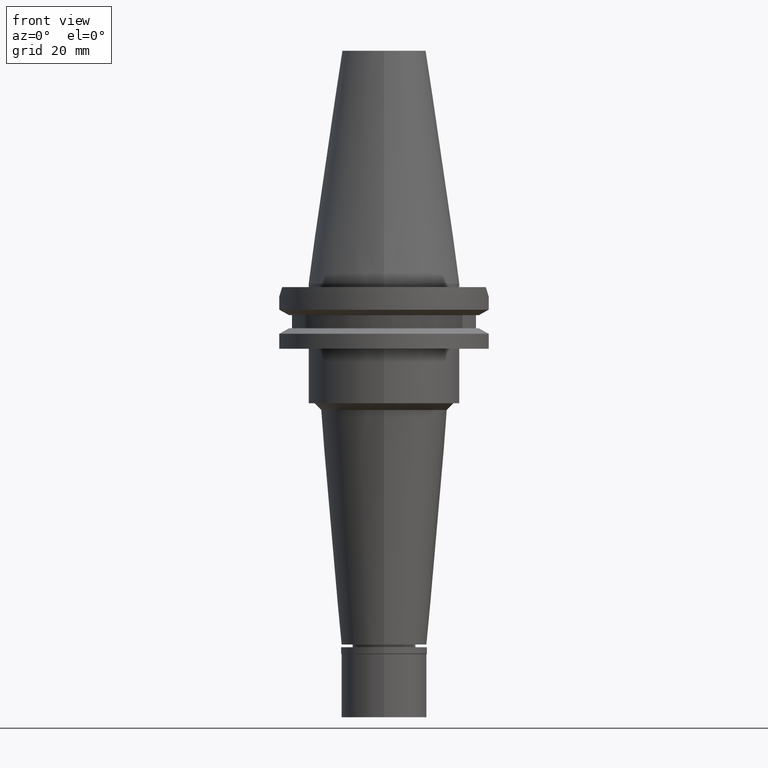
[diagram: clean part render]
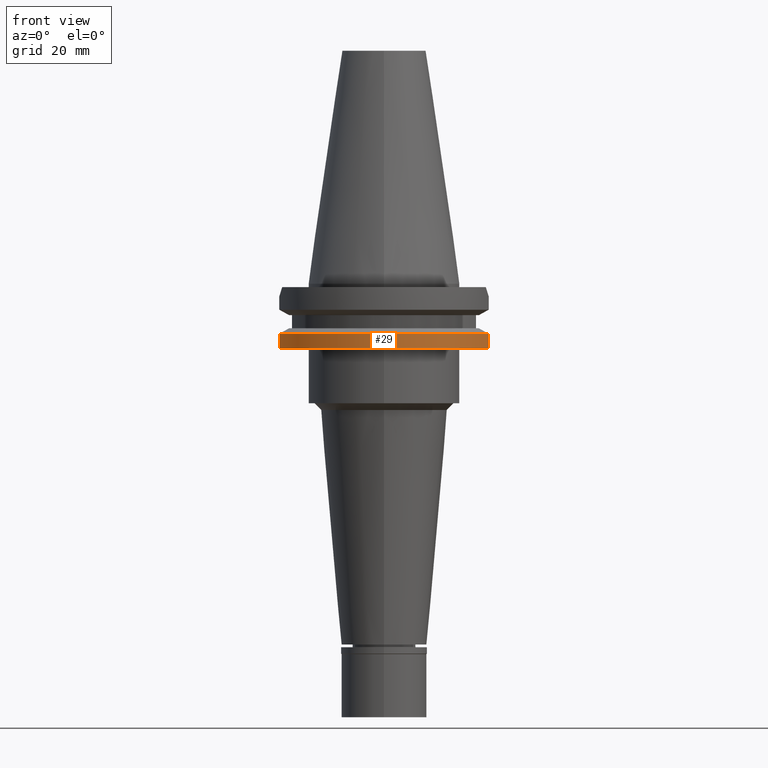
[diagram: same view with one face highlighted and labeled with its STEP entity id]
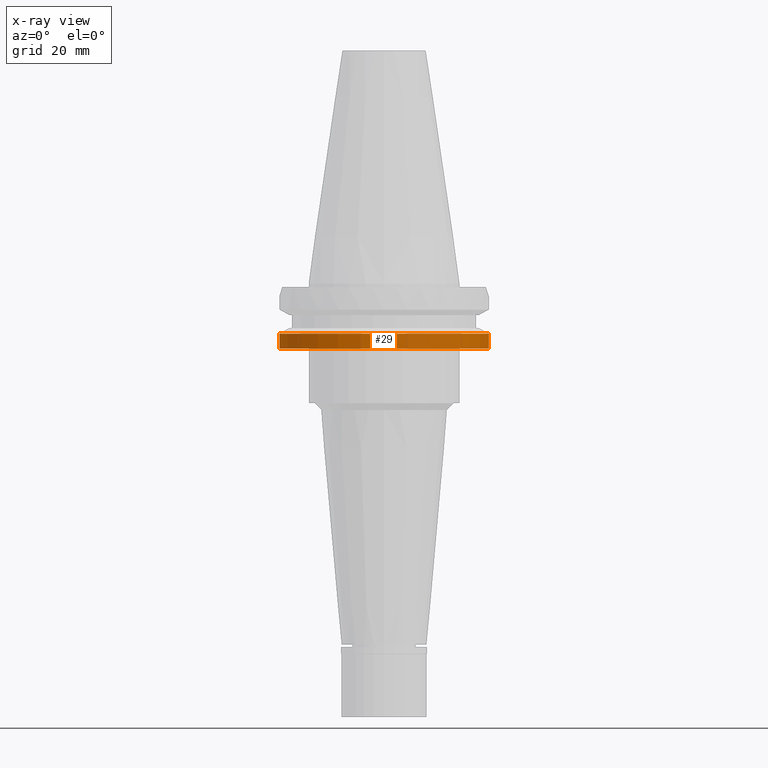
[diagram: x-ray of the same camera — body ghosted, the highlighted face saturated]
A machine part, front view. The second image highlights one B-rep face of the part: STEP entity #29.
The next image is the same camera in x-ray: the body ghosted, the highlighted face saturated — about 0% of this face is hidden behind the body in this view.
In plain terms, the highlighted cylindrical surface (partial cylindrical patch) has radius 31.75 mm, axis along (0, 0, -1).
Its self-contained STEP definition (entity closure, byte-faithful):
#29 = ADVANCED_FACE ( 'NONE', ( #1256 ), #180, .T. ) ;
#45 = CARTESIAN_POINT ( 'NONE',  ( -30.67550162588999640, -8.189999999999999503, -19.05000000000000071 ) ) ;
#180 = CYLINDRICAL_SURFACE ( 'NONE', #1588, 31.75000000000000000 ) ;
#249 = DIRECTION ( 'NONE',  ( 0.0000000000000000000, 0.0000000000000000000, -1.000000000000000000 ) ) ;
#264 = CARTESIAN_POINT ( 'NONE',  ( 30.67550146538999911, -8.190000601170000394, -14.65184201425000055 ) ) ;
#514 = VECTOR ( 'NONE', #3130, 999.9999999999998863 ) ;
#563 = AXIS2_PLACEMENT_3D ( 'NONE', #2590, #249, #3026 ) ;
#709 = CARTESIAN_POINT ( 'NONE',  ( 0.0000000000000000000, 2.176227978254999912E-14, 77.70250000000000057 ) ) ;
#793 = LINE ( 'NONE', #2860, #514 ) ;
#996 = LINE ( 'NONE', #2514, #1757 ) ;
#1005 = DIRECTION ( 'NONE',  ( 0.0000000000000000000, 0.0000000000000000000, 1.000000000000000000 ) ) ;
#1060 = EDGE_CURVE ( 'NONE', #1686, #1486, #1320, .T. ) ;
#1154 = CIRCLE ( 'NONE', #563, 31.74999999999998579 ) ;
#1210 = ORIENTED_EDGE ( 'NONE', *, *, #2208, .F. ) ;
#1256 = FACE_OUTER_BOUND ( 'NONE', #2840, .T. ) ;
#1285 = ORIENTED_EDGE ( 'NONE', *, *, #1060, .T. ) ;
#1320 = CIRCLE ( 'NONE', #2683, 31.75000000000000000 ) ;
#1481 = CARTESIAN_POINT ( 'NONE',  ( 30.67550162588999640, -8.189999999999999503, -19.05000000000000071 ) ) ;
#1486 = VERTEX_POINT ( 'NONE', #1481 ) ;
#1588 = AXIS2_PLACEMENT_3D ( 'NONE', #709, #3039, #2296 ) ;
#1641 = EDGE_CURVE ( 'NONE', #1750, #2206, #1154, .T. ) ;
#1686 = VERTEX_POINT ( 'NONE', #45 ) ;
#1750 = VERTEX_POINT ( 'NONE', #264 ) ;
#1757 = VECTOR ( 'NONE', #2042, 1000.000000000000000 ) ;
#1892 = ORIENTED_EDGE ( 'NONE', *, *, #2806, .F. ) ;
#2042 = DIRECTION ( 'NONE',  ( 3.649361479103928349E-08, 1.366866776808972330E-07, -0.9999999999999900080 ) ) ;
#2206 = VERTEX_POINT ( 'NONE', #3037 ) ;
#2208 = EDGE_CURVE ( 'NONE', #1750, #1486, #996, .T. ) ;
#2296 = DIRECTION ( 'NONE',  ( 0.0000000000000000000, -1.000000000000000000, 0.0000000000000000000 ) ) ;
#2303 = CARTESIAN_POINT ( 'NONE',  ( 0.0000000000000000000, 2.176227978254999912E-14, -19.05000000000000071 ) ) ;
#2514 = CARTESIAN_POINT ( 'NONE',  ( 30.67550146538999911, -8.190000601170000394, -14.65184201425000055 ) ) ;
#2590 = CARTESIAN_POINT ( 'NONE',  ( 0.0000000000000000000, 1.055021971275999843E-14, -14.65183664206000103 ) ) ;
#2683 = AXIS2_PLACEMENT_3D ( 'NONE', #2303, #1005, #3320 ) ;
#2806 = EDGE_CURVE ( 'NONE', #1686, #2206, #793, .T. ) ;
#2840 = EDGE_LOOP ( 'NONE', ( #3357, #1892, #1285, #1210 ) ) ;
#2860 = CARTESIAN_POINT ( 'NONE',  ( -30.67550162588999640, -8.189999999999999503, -19.05000000000000071 ) ) ;
#3026 = DIRECTION ( 'NONE',  ( 0.9661575315241073270, -0.2579527559055020958, 0.0000000000000000000 ) ) ;
#3037 = CARTESIAN_POINT ( 'NONE',  ( -30.67550165918999738, -8.189999875291000819, -14.65183552763999941 ) ) ;
#3039 = DIRECTION ( 'NONE',  ( 0.0000000000000000000, 0.0000000000000000000, -1.000000000000000000 ) ) ;
#3130 = DIRECTION ( 'NONE',  ( -7.570539232029999121E-09, 2.835483417328998883E-08, 0.9999999999999996669 ) ) ;
#3320 = DIRECTION ( 'NONE',  ( 0.0000000000000000000, -1.000000000000000000, 0.0000000000000000000 ) ) ;
#3357 = ORIENTED_EDGE ( 'NONE', *, *, #1641, .T. ) ;